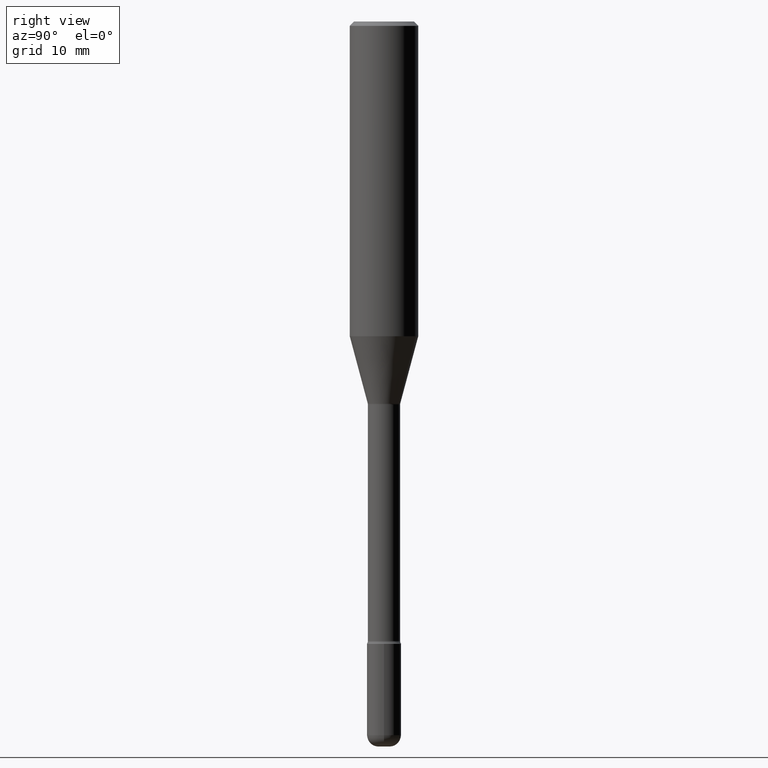
[diagram: clean part render]
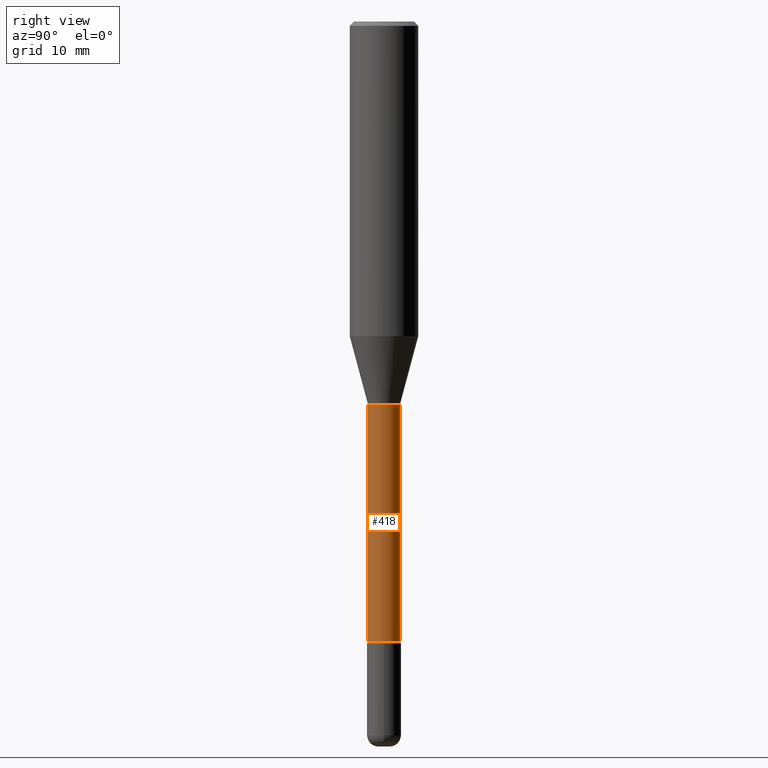
[diagram: same view with one face highlighted and labeled with its STEP entity id]
A machine part, right view. The second image highlights one B-rep face of the part: STEP entity #418.
In plain terms, the highlighted cylindrical surface (edge-blend (fillet) strip) has radius 1.4097 mm, axis along (-0, 0, 1).
Its self-contained STEP definition (entity closure, byte-faithful):
#8 = ORIENTED_EDGE ( 'NONE', *, *, #47, .F. ) ;
#42 = AXIS2_PLACEMENT_3D ( 'NONE', #473, #261, #347 ) ;
#43 = EDGE_CURVE ( 'NONE', #471, #164, #446, .T. ) ;
#46 = EDGE_CURVE ( 'NONE', #190, #531, #488, .T. ) ;
#47 = EDGE_CURVE ( 'NONE', #531, #164, #449, .T. ) ;
#53 = VECTOR ( 'NONE', #481, 39.37007874015748143 ) ;
#77 = CARTESIAN_POINT ( 'NONE',  ( 4.069633519066500838E-16, 0.05549999999999261774, -2.136009927760847749 ) ) ;
#91 = EDGE_CURVE ( 'NONE', #190, #471, #112, .T. ) ;
#96 = CARTESIAN_POINT ( 'NONE',  ( 3.229954369165731744E-29, -4.612101410662676179E-15, -1.320874787463810929 ) ) ;
#105 = CARTESIAN_POINT ( 'NONE',  ( -3.875544286115360749E-16, -0.05550000000000754330, -2.136009927760847305 ) ) ;
#112 = CIRCLE ( 'NONE', #357, 0.05550000000000008399 ) ;
#128 = VECTOR ( 'NONE', #398, 39.37007874015748143 ) ;
#160 = ORIENTED_EDGE ( 'NONE', *, *, #43, .T. ) ;
#164 = VERTEX_POINT ( 'NONE', #285 ) ;
#174 = FACE_OUTER_BOUND ( 'NONE', #239, .T. ) ;
#189 = DIRECTION ( 'NONE',  ( -2.445314574720221452E-29, 3.491702207079214016E-15, 1.000000000000000000 ) ) ;
#190 = VERTEX_POINT ( 'NONE', #105 ) ;
#195 = ORIENTED_EDGE ( 'NONE', *, *, #91, .T. ) ;
#225 = DIRECTION ( 'NONE',  ( -6.982962677686265922E-15, -1.000000000000000000, 4.922248637232899302E-15 ) ) ;
#239 = EDGE_LOOP ( 'NONE', ( #195, #160, #8, #372 ) ) ;
#261 = DIRECTION ( 'NONE',  ( -2.445314574720221452E-29, 3.491702207079214016E-15, 1.000000000000000000 ) ) ;
#285 = CARTESIAN_POINT ( 'NONE',  ( 3.943512183469081661E-16, 0.05549999999999540023, -1.320874787463811373 ) ) ;
#300 = CYLINDRICAL_SURFACE ( 'NONE', #42, 0.05550000000000004929 ) ;
#310 = DIRECTION ( 'NONE',  ( -6.982962677686265922E-15, -1.000000000000000000, 4.922248637232905613E-15 ) ) ;
#318 = CARTESIAN_POINT ( 'NONE',  ( 3.943512183468558548E-16, 0.05550000000000004929, 2.842839263983495232E-16 ) ) ;
#320 = CARTESIAN_POINT ( 'NONE',  ( -3.875544286115880904E-16, -0.05550000000000004929, 6.718628713841425539E-16 ) ) ;
#347 = DIRECTION ( 'NONE',  ( -6.982962677686265922E-15, -1.000000000000000000, 3.491702207079214016E-15 ) ) ;
#357 = AXIS2_PLACEMENT_3D ( 'NONE', #450, #189, #225 ) ;
#372 = ORIENTED_EDGE ( 'NONE', *, *, #46, .F. ) ;
#398 = DIRECTION ( 'NONE',  ( -2.445314574720221172E-29, 3.491702207079214016E-15, 1.000000000000000000 ) ) ;
#418 = ADVANCED_FACE ( 'NONE', ( #174 ), #300, .T. ) ;
#445 = CARTESIAN_POINT ( 'NONE',  ( -3.875544286115555499E-16, -0.05550000000000462202, -1.320874787463810707 ) ) ;
#446 = LINE ( 'NONE', #318, #53 ) ;
#449 = CIRCLE ( 'NONE', #521, 0.05550000000000001460 ) ;
#450 = CARTESIAN_POINT ( 'NONE',  ( 5.223216208100687058E-29, -7.458310579105662270E-15, -2.136009927760847305 ) ) ;
#471 = VERTEX_POINT ( 'NONE', #77 ) ;
#473 = CARTESIAN_POINT ( 'NONE',  ( -1.169113584055446105E-44, 1.669184350826100908E-30, 4.780733988912460139E-16 ) ) ;
#481 = DIRECTION ( 'NONE',  ( -2.445314574720221172E-29, 3.491702207079214016E-15, 1.000000000000000000 ) ) ;
#488 = LINE ( 'NONE', #320, #128 ) ;
#521 = AXIS2_PLACEMENT_3D ( 'NONE', #96, #570, #310 ) ;
#531 = VERTEX_POINT ( 'NONE', #445 ) ;
#570 = DIRECTION ( 'NONE',  ( -2.445314574720221452E-29, 3.491702207079214016E-15, 1.000000000000000000 ) ) ;